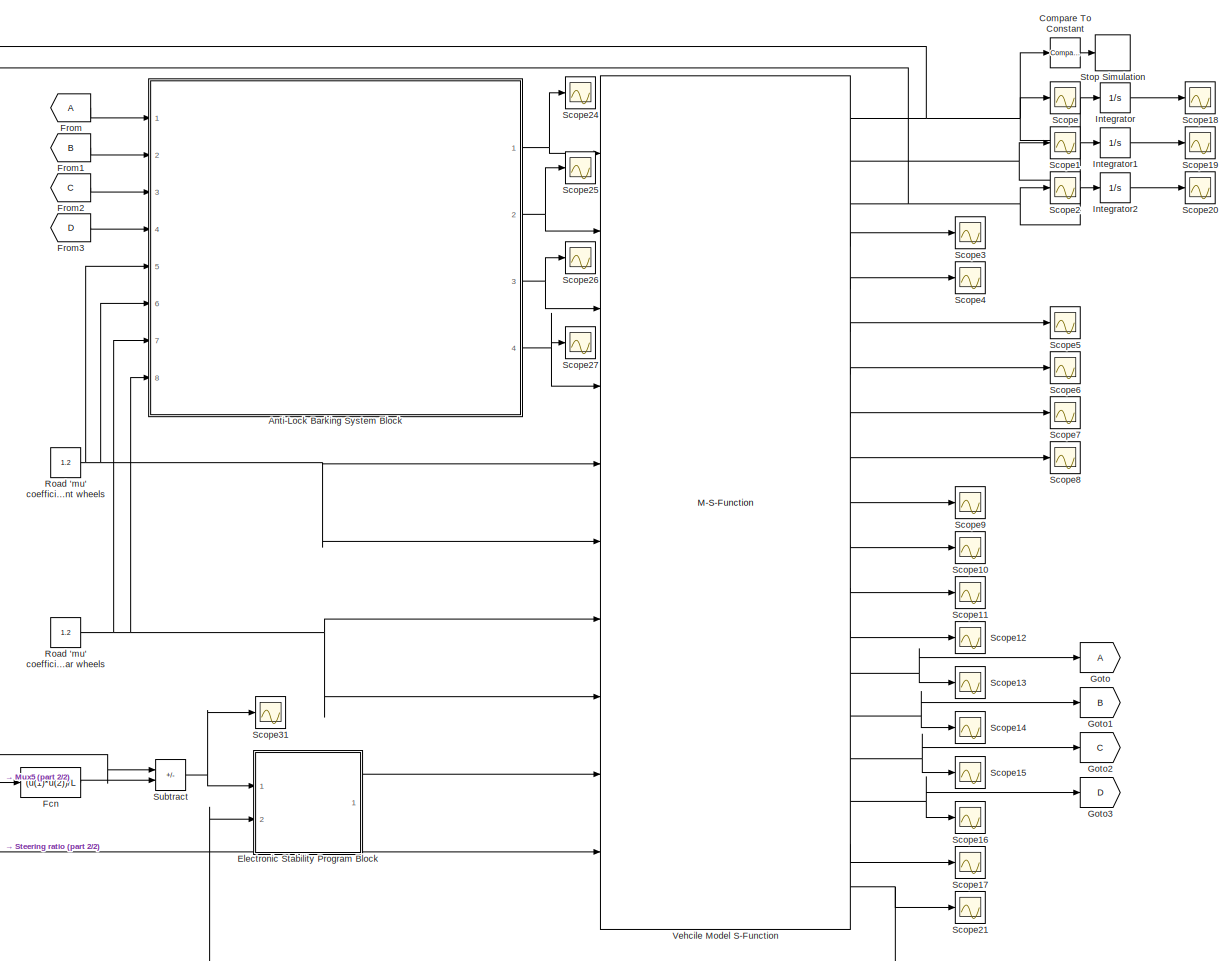
[diagram: root canvas - part 1/2, most of the canvas]
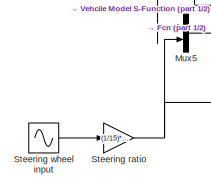
[diagram: root canvas - part 2/2, bottom left region]
MODEL slx_8518e4d2d300
KIND model
CONFIG AbsTol = auto
CONFIG EnableMultiTasking = off
CONFIG FixedStep = auto
CONFIG InitFcn = ABS_F = 'ABS';\nABS_R = 'ABS';\nESP = 'ESP_moment2'\n\na = 1.203;\nb = 1.217;\nL = a + b;\n\n
CONFIG MaxStep = auto
CONFIG MinStep = auto
CONFIG RelTol = 1e-3
CONFIG SampleTimeConstraint = Unconstrained
CONFIG SolverName = VariableStepAuto
CONFIG StartTime = 0.0
CONFIG StopTime = 5
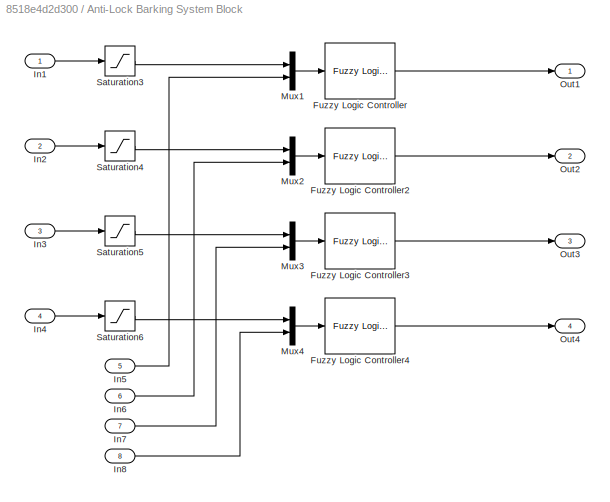
BLOCK [SubSystem] Anti-Lock Barking System Block
  Ports = [8, 4]
  RequestExecContextInheritance = off
BLOCK [Reference] Anti-Lock Barking System Block/Fuzzy Logic Controller  REF=fuzblock/Fuzzy Logic   (lib defined in mdl_858b3b3e7478)
Controller
  Ports = [1, 1]
  SourceBlock = fuzblock/Fuzzy Logic \nController
  SourceProductBaseCode = FL
  SourceType = Fuzzy Inference System
BLOCK [Reference] Anti-Lock Barking System Block/Fuzzy Logic Controller2  REF=fuzblock/Fuzzy Logic   (lib defined in mdl_858b3b3e7478)
Controller
  Ports = [1, 1]
  SourceBlock = fuzblock/Fuzzy Logic \nController
  SourceProductBaseCode = FL
  SourceType = Fuzzy Inference System
BLOCK [Reference] Anti-Lock Barking System Block/Fuzzy Logic Controller3  REF=fuzblock/Fuzzy Logic   (lib defined in mdl_858b3b3e7478)
Controller
  Ports = [1, 1]
  SourceBlock = fuzblock/Fuzzy Logic \nController
  SourceProductBaseCode = FL
  SourceType = Fuzzy Inference System
BLOCK [Reference] Anti-Lock Barking System Block/Fuzzy Logic Controller4  REF=fuzblock/Fuzzy Logic   (lib defined in mdl_858b3b3e7478)
Controller
  Ports = [1, 1]
  SourceBlock = fuzblock/Fuzzy Logic \nController
  SourceProductBaseCode = FL
  SourceType = Fuzzy Inference System
BLOCK [Inport] Anti-Lock Barking System Block/In1
BLOCK [Inport] Anti-Lock Barking System Block/In2
  Port = 2
BLOCK [Inport] Anti-Lock Barking System Block/In3
  Port = 3
BLOCK [Inport] Anti-Lock Barking System Block/In4
  Port = 4
BLOCK [Inport] Anti-Lock Barking System Block/In5
  Port = 5
BLOCK [Inport] Anti-Lock Barking System Block/In6
  Port = 6
BLOCK [Inport] Anti-Lock Barking System Block/In7
  Port = 7
BLOCK [Inport] Anti-Lock Barking System Block/In8
  Port = 8
BLOCK [Mux] Anti-Lock Barking System Block/Mux1
  DisplayOption = bar
  Inputs = 2
  Ports = [2, 1]
BLOCK [Mux] Anti-Lock Barking System Block/Mux2
  DisplayOption = bar
  Inputs = 2
  Ports = [2, 1]
BLOCK [Mux] Anti-Lock Barking System Block/Mux3
  DisplayOption = bar
  Inputs = 2
  Ports = [2, 1]
BLOCK [Mux] Anti-Lock Barking System Block/Mux4
  DisplayOption = bar
  Inputs = 2
  Ports = [2, 1]
BLOCK [Outport] Anti-Lock Barking System Block/Out1
  VectorParamsAs1DForOutWhenUnconnected = off
BLOCK [Outport] Anti-Lock Barking System Block/Out2
  Port = 2
  VectorParamsAs1DForOutWhenUnconnected = off
BLOCK [Outport] Anti-Lock Barking System Block/Out3
  Port = 3
  VectorParamsAs1DForOutWhenUnconnected = off
BLOCK [Outport] Anti-Lock Barking System Block/Out4
  Port = 4
  VectorParamsAs1DForOutWhenUnconnected = off
BLOCK [Saturate] Anti-Lock Barking System Block/Saturation3
  LowerLimit = 0.06
  UpperLimit = 0.15
BLOCK [Saturate] Anti-Lock Barking System Block/Saturation4
  LowerLimit = 0.06
  UpperLimit = 0.15
BLOCK [Saturate] Anti-Lock Barking System Block/Saturation5
  LowerLimit = 0.055
  UpperLimit = 0.14
BLOCK [Saturate] Anti-Lock Barking System Block/Saturation6
  LowerLimit = 0.055
  UpperLimit = 0.14
BLOCK [Reference] Compare To Constant  REF=simulink/Logic and Bit
Operations/Compare
To Constant
  Ports = [1, 1]
  SourceBlock = simulink/Logic and Bit\nOperations/Compare\nTo Constant
  SourceProductBaseCode = SL
  SourceType = Compare To Constant
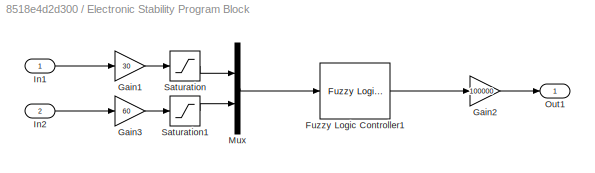
BLOCK [SubSystem] Electronic Stability Program Block
  Commented = on
  Ports = [2, 1]
  RequestExecContextInheritance = off
  UserDataPersistent = on
BLOCK [Reference] Electronic Stability Program Block/Fuzzy Logic Controller1  REF=fuzblock/Fuzzy Logic   (lib defined in mdl_858b3b3e7478)
Controller
  Ports = [1, 1]
  SourceBlock = fuzblock/Fuzzy Logic \nController
  SourceProductBaseCode = FL
  SourceType = Fuzzy Inference System
BLOCK [Gain] Electronic Stability Program Block/Gain1
  Gain = 30
BLOCK [Gain] Electronic Stability Program Block/Gain2
  Gain = 100000
BLOCK [Gain] Electronic Stability Program Block/Gain3
  Gain = 60
BLOCK [Inport] Electronic Stability Program Block/In1
BLOCK [Inport] Electronic Stability Program Block/In2
  Port = 2
BLOCK [Mux] Electronic Stability Program Block/Mux
  DisplayOption = bar
  Inputs = 2
  Ports = [2, 1]
BLOCK [Outport] Electronic Stability Program Block/Out1
  VectorParamsAs1DForOutWhenUnconnected = off
BLOCK [Saturate] Electronic Stability Program Block/Saturation
  LowerLimit = -6
  UpperLimit = 6
BLOCK [Saturate] Electronic Stability Program Block/Saturation1
  LowerLimit = -6
  UpperLimit = 6
BLOCK [Fcn] Fcn
  Expr = (u(1)*u(2))/L
BLOCK [From] From
BLOCK [From] From1
  GotoTag = B
BLOCK [From] From2
  GotoTag = C
BLOCK [From] From3
  GotoTag = D
BLOCK [Goto] Goto
BLOCK [Goto] Goto1
  GotoTag = B
BLOCK [Goto] Goto2
  GotoTag = C
BLOCK [Goto] Goto3
  GotoTag = D
BLOCK [Integrator] Integrator
  Ports = [1, 1]
BLOCK [Integrator] Integrator1
  Ports = [1, 1]
BLOCK [Integrator] Integrator2
  Ports = [1, 1]
BLOCK [Mux] Mux5
  DisplayOption = bar
  Inputs = 2
  Ports = [2, 1]
BLOCK [Constant] Road 'mu' coefficient - front wheels
  Value = 1.2
BLOCK [Constant] Road 'mu' coefficient - rear wheels
  Value = 1.2
BLOCK [Scope] Scope
  Floating = off
  NumInputPorts = 1
  Ports = [1]
  ScopeSpecificationString = Simulink.scopes.TimeScopeBlockCfg('CurrentConfiguration', extmgr.ConfigurationSet(extmgr.Configuration('Core','General UI',true),extmgr.Configuration('Core','Source UI',true),extmgr.Configuration('Sources','WiredSimulink',true,'DataLoggingVariableName','ScopeData1'),extmgr.Configuration('Visuals','Time Domain',true,'SerializedDisplays',{struct('MinYLimReal','23.18099','MaxYLimReal','28.291','YLabe...<+1413ch>
BLOCK [Scope] Scope1
  Floating = off
  NumInputPorts = 1
  Ports = [1]
  ScopeSpecificationString = Simulink.scopes.TimeScopeBlockCfg('CurrentConfiguration', extmgr.ConfigurationSet(extmgr.Configuration('Core','General UI',true),extmgr.Configuration('Core','Source UI',true),extmgr.Configuration('Sources','WiredSimulink',true,'DataLoggingVariableName','ScopeData1'),extmgr.Configuration('Visuals','Time Domain',true,'SerializedDisplays',{struct('MinYLimReal','-0.00115','MaxYLimReal','0.01037','YLab...<+1415ch>
BLOCK [Scope] Scope10
  Floating = off
  NumInputPorts = 1
  Ports = [1]
  ScopeSpecificationString = Simulink.scopes.TimeScopeBlockCfg('CurrentConfiguration', extmgr.ConfigurationSet(extmgr.Configuration('Core','General UI',true),extmgr.Configuration('Core','Source UI',true),extmgr.Configuration('Sources','WiredSimulink',true,'DataLoggingVariableName','ScopeData10'),extmgr.Configuration('Visuals','Time Domain',true,'SerializedDisplays',{struct('MinYLimReal','52.11532','MaxYLimReal','60.08643','YL...<+1423ch>
BLOCK [Scope] Scope11
  Floating = off
  NumInputPorts = 1
  Ports = [1]
  ScopeSpecificationString = Simulink.scopes.TimeScopeBlockCfg('CurrentConfiguration', extmgr.ConfigurationSet(extmgr.Configuration('Core','General UI',true),extmgr.Configuration('Core','Source UI',true),extmgr.Configuration('Sources','WiredSimulink',true,'DataLoggingVariableName','ScopeData11'),extmgr.Configuration('Visuals','Time Domain',true,'SerializedDisplays',{struct('MinYLimReal','-1.27635','MaxYLimReal','65.99367','YL...<+1421ch>
BLOCK [Scope] Scope12
  Floating = off
  NumInputPorts = 1
  Ports = [1]
  ScopeSpecificationString = Simulink.scopes.TimeScopeBlockCfg('CurrentConfiguration', extmgr.ConfigurationSet(extmgr.Configuration('Core','General UI',true),extmgr.Configuration('Core','Source UI',true),extmgr.Configuration('Sources','WiredSimulink',true,'DataLoggingVariableName','ScopeData1'),extmgr.Configuration('Visuals','Time Domain',true,'SerializedDisplays',{struct('MinYLimReal','74.66499','MaxYLimReal','94.59278','YLa...<+1422ch>
BLOCK [Scope] Scope13
  Floating = off
  NumInputPorts = 1
  Ports = [1]
  ScopeSpecificationString = Simulink.scopes.TimeScopeBlockCfg('CurrentConfiguration', extmgr.ConfigurationSet(extmgr.Configuration('Core','General UI',true),extmgr.Configuration('Core','Source UI',true),extmgr.Configuration('Sources','WiredSimulink',true,'DataLoggingVariableName','ScopeData13'),extmgr.Configuration('Visuals','Time Domain',true,'SerializedDisplays',{struct('MinYLimReal','-0.01439','MaxYLimReal','0.12952','YLa...<+1417ch>
BLOCK [Scope] Scope14
  Floating = off
  NumInputPorts = 1
  Ports = [1]
  ScopeSpecificationString = Simulink.scopes.TimeScopeBlockCfg('CurrentConfiguration', extmgr.ConfigurationSet(extmgr.Configuration('Core','General UI',true),extmgr.Configuration('Core','Source UI',true),extmgr.Configuration('Sources','WiredSimulink',true,'DataLoggingVariableName','ScopeData14'),extmgr.Configuration('Visuals','Time Domain',true,'SerializedDisplays',{struct('MinYLimReal','-0.0087','MaxYLimReal','0.0783','YLabe...<+1382ch>
BLOCK [Scope] Scope15
  Floating = off
  NumInputPorts = 1
  Ports = [1]
  ScopeSpecificationString = Simulink.scopes.TimeScopeBlockCfg('CurrentConfiguration', extmgr.ConfigurationSet(extmgr.Configuration('Core','General UI',true),extmgr.Configuration('Core','Source UI',true),extmgr.Configuration('Sources','WiredSimulink',true,'DataLoggingVariableName','ScopeData15'),extmgr.Configuration('Visuals','Time Domain',true,'SerializedDisplays',{struct('MinYLimReal','-0.01442','MaxYLimReal','0.12975','YLa...<+1417ch>
BLOCK [Scope] Scope16
  Floating = off
  NumInputPorts = 1
  Ports = [1]
  ScopeSpecificationString = Simulink.scopes.TimeScopeBlockCfg('CurrentConfiguration', extmgr.ConfigurationSet(extmgr.Configuration('Core','General UI',true),extmgr.Configuration('Core','Source UI',true),extmgr.Configuration('Sources','WiredSimulink',true,'DataLoggingVariableName','ScopeData16'),extmgr.Configuration('Visuals','Time Domain',true,'SerializedDisplays',{struct('MinYLimReal','-0.01889','MaxYLimReal','0.17','YLabel...<+1405ch>
BLOCK [Scope] Scope17
  Floating = off
  NumInputPorts = 1
  Ports = [1]
  ScopeSpecificationString = Simulink.scopes.TimeScopeBlockCfg('CurrentConfiguration', extmgr.ConfigurationSet(extmgr.Configuration('Core','General UI',true),extmgr.Configuration('Core','Source UI',true),extmgr.Configuration('Sources','WiredSimulink',true,'DataLoggingVariableName','ScopeData1'),extmgr.Configuration('Visuals','Time Domain',true,'SerializedDisplays',{struct('MinYLimReal','23.18099','MaxYLimReal','28.291','YLabe...<+1414ch>
BLOCK [Scope] Scope18
  Floating = off
  NumInputPorts = 1
  Ports = [1]
  ScopeSpecificationString = Simulink.scopes.TimeScopeBlockCfg('CurrentConfiguration', extmgr.ConfigurationSet(extmgr.Configuration('Core','General UI',true),extmgr.Configuration('Core','Source UI',true),extmgr.Configuration('Sources','WiredSimulink',true,'DataLoggingVariableName','LongitudinalPos','DataLogging',true,'DataLoggingSaveFormat','StructureWithTime'),extmgr.Configuration('Visuals','Time Domain',true,'SerializedDisp...<+1477ch>
BLOCK [Scope] Scope19
  Floating = off
  NumInputPorts = 1
  Ports = [1]
  ScopeSpecificationString = Simulink.scopes.TimeScopeBlockCfg('CurrentConfiguration', extmgr.ConfigurationSet(extmgr.Configuration('Core','General UI',true),extmgr.Configuration('Core','Source UI',true),extmgr.Configuration('Sources','WiredSimulink',true,'DataLoggingVariableName','LateralPos','DataLogging',true,'DataLoggingSaveFormat','StructureWithTime'),extmgr.Configuration('Visuals','Time Domain',true,'SerializedDisplays'...<+1463ch>
BLOCK [Scope] Scope2
  Floating = off
  NumInputPorts = 1
  Ports = [1]
  ScopeSpecificationString = Simulink.scopes.TimeScopeBlockCfg('CurrentConfiguration', extmgr.ConfigurationSet(extmgr.Configuration('Core','General UI',true),extmgr.Configuration('Core','Source UI',true),extmgr.Configuration('Sources','WiredSimulink',true,'DataLoggingVariableName','YawRate','DataLogging',true,'DataLoggingSaveFormat','StructureWithTime'),extmgr.Configuration('Visuals','Time Domain',true,'SerializedDisplays',{s...<+1503ch>
BLOCK [Scope] Scope20
  Floating = off
  NumInputPorts = 1
  Ports = [1]
  ScopeSpecificationString = Simulink.scopes.TimeScopeBlockCfg('CurrentConfiguration', extmgr.ConfigurationSet(extmgr.Configuration('Core','General UI',true),extmgr.Configuration('Core','Source UI',true),extmgr.Configuration('Sources','WiredSimulink',true,'DataLoggingVariableName','YawAngle','DataLogging',true,'DataLoggingSaveFormat','StructureWithTime'),extmgr.Configuration('Visuals','Time Domain',true,'SerializedDisplays',{...<+1457ch>
BLOCK [Scope] Scope21
  Floating = off
  NumInputPorts = 1
  Ports = [1]
  ScopeSpecificationString = Simulink.scopes.TimeScopeBlockCfg('CurrentConfiguration', extmgr.ConfigurationSet(extmgr.Configuration('Core','General UI',true),extmgr.Configuration('Core','Source UI',true),extmgr.Configuration('Sources','WiredSimulink',true,'DataLoggingVariableName','SideSlipAngle','DataLogging',true,'DataLoggingSaveFormat','StructureWithTime'),extmgr.Configuration('Visuals','Time Domain',true,'SerializedDispla...<+1504ch>
BLOCK [Scope] Scope24
  Floating = off
  NumInputPorts = 1
  Ports = [1]
  ScopeSpecificationString = Simulink.scopes.TimeScopeBlockCfg('CurrentConfiguration', extmgr.ConfigurationSet(extmgr.Configuration('Core','General UI',true),extmgr.Configuration('Core','Source UI',true),extmgr.Configuration('Sources','WiredSimulink',true,'DataLoggingVariableName','ScopeData1'),extmgr.Configuration('Visuals','Time Domain',true,'SerializedDisplays',{struct('MinYLimReal','184.08726','MaxYLimReal','297.33786','Y...<+1430ch>
BLOCK [Scope] Scope25
  Floating = off
  NumInputPorts = 1
  Ports = [1]
  ScopeSpecificationString = Simulink.scopes.TimeScopeBlockCfg('CurrentConfiguration', extmgr.ConfigurationSet(extmgr.Configuration('Core','General UI',true),extmgr.Configuration('Core','Source UI',true),extmgr.Configuration('Sources','WiredSimulink',true,'DataLoggingVariableName','ScopeData4'),extmgr.Configuration('Visuals','Time Domain',true,'SerializedDisplays',{struct('MinYLimReal','184.08726','MaxYLimReal','297.33786','Y...<+1430ch>
BLOCK [Scope] Scope26
  Floating = off
  NumInputPorts = 1
  Ports = [1]
  ScopeSpecificationString = Simulink.scopes.TimeScopeBlockCfg('CurrentConfiguration', extmgr.ConfigurationSet(extmgr.Configuration('Core','General UI',true),extmgr.Configuration('Core','Source UI',true),extmgr.Configuration('Sources','WiredSimulink',true,'DataLoggingVariableName','ScopeData2'),extmgr.Configuration('Visuals','Time Domain',true,'SerializedDisplays',{struct('MinYLimReal','-1.00000','MaxYLimReal','1.00000','YLab...<+1399ch>
BLOCK [Scope] Scope27
  Floating = off
  NumInputPorts = 1
  Ports = [1]
  ScopeSpecificationString = Simulink.scopes.TimeScopeBlockCfg('CurrentConfiguration', extmgr.ConfigurationSet(extmgr.Configuration('Core','General UI',true),extmgr.Configuration('Core','Source UI',true),extmgr.Configuration('Sources','WiredSimulink',true,'DataLoggingVariableName','ScopeData3'),extmgr.Configuration('Visuals','Time Domain',true,'SerializedDisplays',{struct('MinYLimReal','87.05014','MaxYLimReal','308.11976','YL...<+1426ch>
BLOCK [Scope] Scope3
  Floating = off
  NumInputPorts = 1
  Ports = [1]
  ScopeSpecificationString = Simulink.scopes.TimeScopeBlockCfg('CurrentConfiguration', extmgr.ConfigurationSet(extmgr.Configuration('Core','General UI',true),extmgr.Configuration('Core','Source UI',true),extmgr.Configuration('Sources','WiredSimulink',true,'DataLoggingVariableName','ScopeData3'),extmgr.Configuration('Visuals','Time Domain',true,'SerializedDisplays',{struct('MinYLimReal','-0.80969','MaxYLimReal','0.58532','YLab...<+1415ch>
BLOCK [Scope] Scope31
  Floating = off
  NumInputPorts = 1
  Ports = [1]
  ScopeSpecificationString = Simulink.scopes.TimeScopeBlockCfg('CurrentConfiguration', extmgr.ConfigurationSet(extmgr.Configuration('Core','General UI',true),extmgr.Configuration('Core','Source UI',true),extmgr.Configuration('Sources','WiredSimulink',true,'DataLoggingVariableName','YawRateError','DataLogging',true,'DataLoggingSaveFormat','StructureWithTime'),extmgr.Configuration('Visuals','Time Domain',true,'SerializedDisplay...<+1461ch>
BLOCK [Scope] Scope4
  Floating = off
  NumInputPorts = 1
  Ports = [1]
  ScopeSpecificationString = Simulink.scopes.TimeScopeBlockCfg('CurrentConfiguration', extmgr.ConfigurationSet(extmgr.Configuration('Core','General UI',true),extmgr.Configuration('Core','Source UI',true),extmgr.Configuration('Sources','WiredSimulink',true,'DataLoggingVariableName','ScopeData4'),extmgr.Configuration('Visuals','Time Domain',true,'SerializedDisplays',{struct('MinYLimReal','-0.58236','MaxYLimReal','0.4432','YLabe...<+1413ch>
BLOCK [Scope] Scope5
  Floating = off
  NumInputPorts = 1
  Ports = [1]
  ScopeSpecificationString = Simulink.scopes.TimeScopeBlockCfg('CurrentConfiguration', extmgr.ConfigurationSet(extmgr.Configuration('Core','General UI',true),extmgr.Configuration('Core','Source UI',true),extmgr.Configuration('Sources','WiredSimulink',true,'DataLoggingVariableName','ScopeData5'),extmgr.Configuration('Visuals','Time Domain',true,'SerializedDisplays',{struct('MinYLimReal','25.76401','MaxYLimReal','28.004','YLabe...<+1413ch>
BLOCK [Scope] Scope6
  Floating = off
  NumInputPorts = 1
  Ports = [1]
  ScopeSpecificationString = Simulink.scopes.TimeScopeBlockCfg('CurrentConfiguration', extmgr.ConfigurationSet(extmgr.Configuration('Core','General UI',true),extmgr.Configuration('Core','Source UI',true),extmgr.Configuration('Sources','WiredSimulink',true,'DataLoggingVariableName','ScopeData6'),extmgr.Configuration('Visuals','Time Domain',true,'SerializedDisplays',{struct('MinYLimReal','15.70571','MaxYLimReal','18.01195','YLa...<+1421ch>
BLOCK [Scope] Scope7
  Floating = off
  NumInputPorts = 1
  Ports = [1]
  ScopeSpecificationString = Simulink.scopes.TimeScopeBlockCfg('CurrentConfiguration', extmgr.ConfigurationSet(extmgr.Configuration('Core','General UI',true),extmgr.Configuration('Core','Source UI',true),extmgr.Configuration('Sources','WiredSimulink',true,'DataLoggingVariableName','ScopeData7'),extmgr.Configuration('Visuals','Time Domain',true,'SerializedDisplays',{struct('MinYLimReal','8.05305','MaxYLimReal','8.53942','YLabe...<+1413ch>
BLOCK [Scope] Scope8
  Floating = off
  NumInputPorts = 1
  Ports = [1]
  ScopeSpecificationString = Simulink.scopes.TimeScopeBlockCfg('CurrentConfiguration', extmgr.ConfigurationSet(extmgr.Configuration('Core','General UI',true),extmgr.Configuration('Core','Source UI',true),extmgr.Configuration('Sources','WiredSimulink',true,'DataLoggingVariableName','ScopeData8'),extmgr.Configuration('Visuals','Time Domain',true,'SerializedDisplays',{struct('MinYLimReal','8.05305','MaxYLimReal','8.53942','YLabe...<+1413ch>
BLOCK [Scope] Scope9
  Floating = off
  NumInputPorts = 1
  Ports = [1]
  ScopeSpecificationString = Simulink.scopes.TimeScopeBlockCfg('CurrentConfiguration', extmgr.ConfigurationSet(extmgr.Configuration('Core','General UI',true),extmgr.Configuration('Core','Source UI',true),extmgr.Configuration('Sources','WiredSimulink',true,'DataLoggingVariableName','ScopeData9'),extmgr.Configuration('Visuals','Time Domain',true,'SerializedDisplays',{struct('MinYLimReal','52.11532','MaxYLimReal','60.08643','YLa...<+1393ch>
BLOCK [Gain] Steering ratio
  Gain = (1/15)*(pi/180)
BLOCK [Sin] Steering wheel input
  Amplitude = 0
  Frequency = (2*pi)/5
  Ports = [0, 1]
  SampleTime = 0
BLOCK [Stop] Stop Simulation
BLOCK [Sum] Subtract
  IconShape = rectangular
  Inputs = +-
  Ports = [2, 1]
BLOCK [M-S-Function] Vehcile Model S-Function
  FunctionName = vehicle_sD
  Ports = [10, 19]
LINE Anti-Lock Barking System Block/Fuzzy Logic Controller2:1 -> Anti-Lock Barking System Block/Out2:1
LINE Anti-Lock Barking System Block/Fuzzy Logic Controller3:1 -> Anti-Lock Barking System Block/Out3:1
LINE Anti-Lock Barking System Block/Fuzzy Logic Controller4:1 -> Anti-Lock Barking System Block/Out4:1
LINE Anti-Lock Barking System Block/Fuzzy Logic Controller:1 -> Anti-Lock Barking System Block/Out1:1
LINE Anti-Lock Barking System Block/In1:1 -> Anti-Lock Barking System Block/Saturation3:1
LINE Anti-Lock Barking System Block/In2:1 -> Anti-Lock Barking System Block/Saturation4:1
LINE Anti-Lock Barking System Block/In3:1 -> Anti-Lock Barking System Block/Saturation5:1
LINE Anti-Lock Barking System Block/In4:1 -> Anti-Lock Barking System Block/Saturation6:1
LINE Anti-Lock Barking System Block/In5:1 -> Anti-Lock Barking System Block/Mux1:2
LINE Anti-Lock Barking System Block/In6:1 -> Anti-Lock Barking System Block/Mux2:2
LINE Anti-Lock Barking System Block/In7:1 -> Anti-Lock Barking System Block/Mux3:2
LINE Anti-Lock Barking System Block/In8:1 -> Anti-Lock Barking System Block/Mux4:2
LINE Anti-Lock Barking System Block/Mux1:1 -> Anti-Lock Barking System Block/Fuzzy Logic Controller:1
LINE Anti-Lock Barking System Block/Mux2:1 -> Anti-Lock Barking System Block/Fuzzy Logic Controller2:1
LINE Anti-Lock Barking System Block/Mux3:1 -> Anti-Lock Barking System Block/Fuzzy Logic Controller3:1
LINE Anti-Lock Barking System Block/Mux4:1 -> Anti-Lock Barking System Block/Fuzzy Logic Controller4:1
LINE Anti-Lock Barking System Block/Saturation3:1 -> Anti-Lock Barking System Block/Mux1:1
LINE Anti-Lock Barking System Block/Saturation4:1 -> Anti-Lock Barking System Block/Mux2:1
LINE Anti-Lock Barking System Block/Saturation5:1 -> Anti-Lock Barking System Block/Mux3:1
LINE Anti-Lock Barking System Block/Saturation6:1 -> Anti-Lock Barking System Block/Mux4:1
NET Anti-Lock Barking System Block:1 -> Scope24:1, Vehcile Model S-Function:1
NET Anti-Lock Barking System Block:2 -> Scope25:1, Vehcile Model S-Function:2
NET Anti-Lock Barking System Block:3 -> Scope26:1, Vehcile Model S-Function:3
NET Anti-Lock Barking System Block:4 -> Scope27:1, Vehcile Model S-Function:4
LINE Compare To Constant:1 -> Stop Simulation:1
LINE Electronic Stability Program Block/Fuzzy Logic Controller1:1 -> Electronic Stability Program Block/Gain2:1
LINE Electronic Stability Program Block/Gain1:1 -> Electronic Stability Program Block/Saturation:1
LINE Electronic Stability Program Block/Gain2:1 -> Electronic Stability Program Block/Out1:1
LINE Electronic Stability Program Block/Gain3:1 -> Electronic Stability Program Block/Saturation1:1
LINE Electronic Stability Program Block/In1:1 -> Electronic Stability Program Block/Gain1:1
LINE Electronic Stability Program Block/In2:1 -> Electronic Stability Program Block/Gain3:1
LINE Electronic Stability Program Block/Mux:1 -> Electronic Stability Program Block/Fuzzy Logic Controller1:1
LINE Electronic Stability Program Block/Saturation1:1 -> Electronic Stability Program Block/Mux:2
LINE Electronic Stability Program Block/Saturation:1 -> Electronic Stability Program Block/Mux:1
LINE Electronic Stability Program Block:1 -> Vehcile Model S-Function:9
LINE Fcn:1 -> Subtract:2
LINE From1:1 -> Anti-Lock Barking System Block:2
LINE From2:1 -> Anti-Lock Barking System Block:3
LINE From3:1 -> Anti-Lock Barking System Block:4
LINE From:1 -> Anti-Lock Barking System Block:1
LINE Integrator1:1 -> Scope19:1
LINE Integrator2:1 -> Scope20:1
LINE Integrator:1 -> Scope18:1
LINE Mux5:1 -> Fcn:1
NET Road 'mu' coefficient - front wheels:1 -> Anti-Lock Barking System Block:5, Anti-Lock Barking System Block:6, Vehcile Model S-Function:5, Vehcile Model S-Function:6
NET Road 'mu' coefficient - rear wheels:1 -> Anti-Lock Barking System Block:7, Anti-Lock Barking System Block:8, Vehcile Model S-Function:7, Vehcile Model S-Function:8
NET Steering ratio:1 -> Mux5:2, Vehcile Model S-Function:10
LINE Steering wheel input:1 -> Steering ratio:1
NET Subtract:1 -> Electronic Stability Program Block:1, Scope31:1
NET Vehcile Model S-Function:1 -> Compare To Constant:1, Integrator:1, Mux5:1, Scope:1
LINE Vehcile Model S-Function:10 -> Scope9:1
LINE Vehcile Model S-Function:11 -> Scope10:1
LINE Vehcile Model S-Function:12 -> Scope11:1
LINE Vehcile Model S-Function:13 -> Scope12:1
NET Vehcile Model S-Function:14 -> Goto:1, Scope13:1
NET Vehcile Model S-Function:15 -> Goto1:1, Scope14:1
NET Vehcile Model S-Function:16 -> Goto2:1, Scope15:1
NET Vehcile Model S-Function:17 -> Goto3:1, Scope16:1
LINE Vehcile Model S-Function:18 -> Scope17:1
NET Vehcile Model S-Function:19 -> Electronic Stability Program Block:2, Scope21:1
NET Vehcile Model S-Function:2 -> Integrator1:1, Scope1:1
NET Vehcile Model S-Function:3 -> Integrator2:1, Scope2:1, Subtract:1
LINE Vehcile Model S-Function:4 -> Scope3:1
LINE Vehcile Model S-Function:5 -> Scope4:1
LINE Vehcile Model S-Function:6 -> Scope5:1
LINE Vehcile Model S-Function:7 -> Scope6:1
LINE Vehcile Model S-Function:8 -> Scope7:1
LINE Vehcile Model S-Function:9 -> Scope8:1
note: NET lines group one-source signal fan-out (src -> all destinations, sorted); 1:1 wires keep LINE
